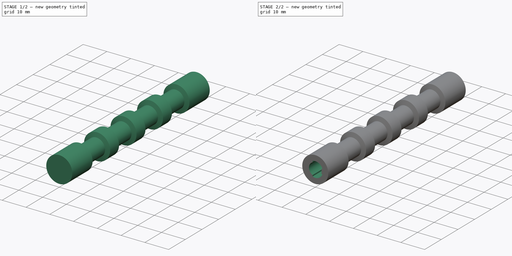
[diagram: build sequence overview — one tinted view per stage of 2, left to right]
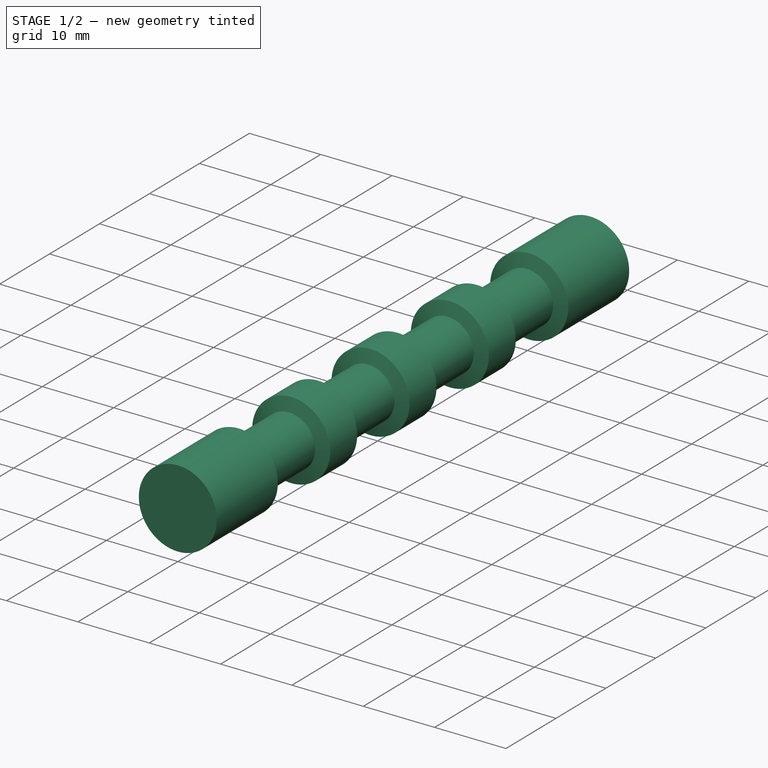
[diagram: stage 1 of 2 — iso view after this stage's code; geometry added in this stage tinted green]
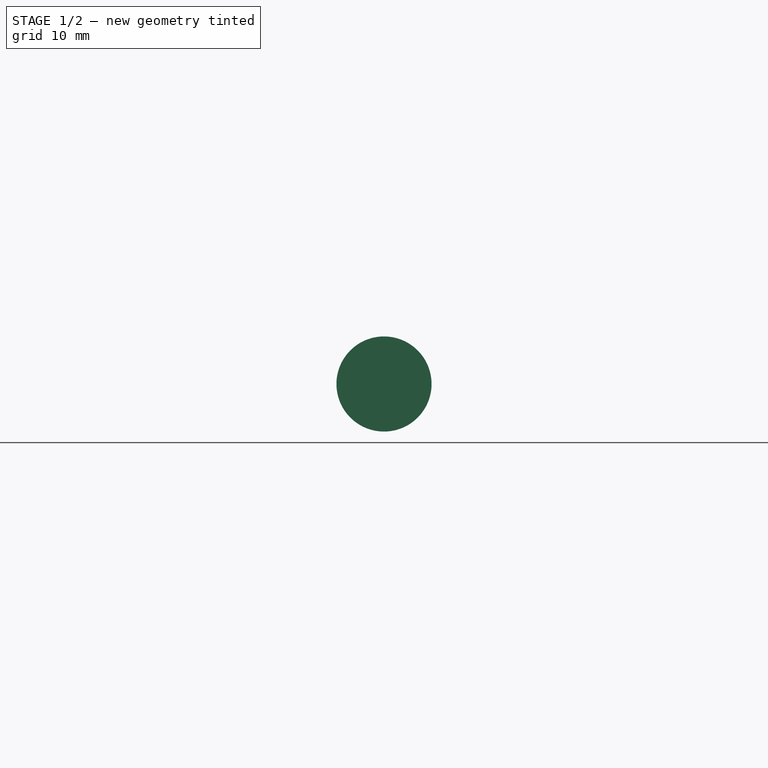
[diagram: stage 1 of 2 — front view after this stage's code; geometry added in this stage tinted green]
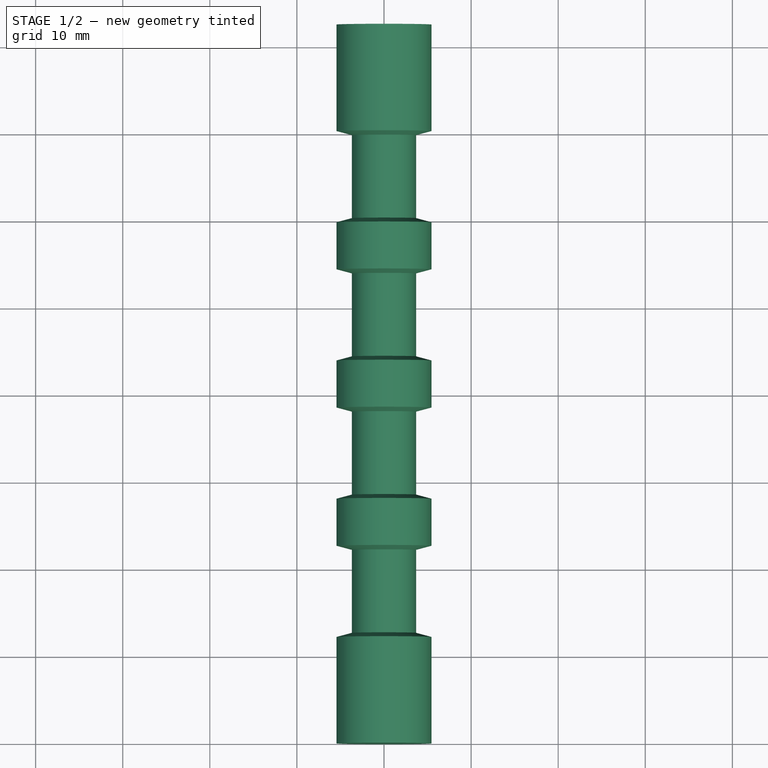
[diagram: stage 1 of 2 — top view after this stage's code; geometry added in this stage tinted green]
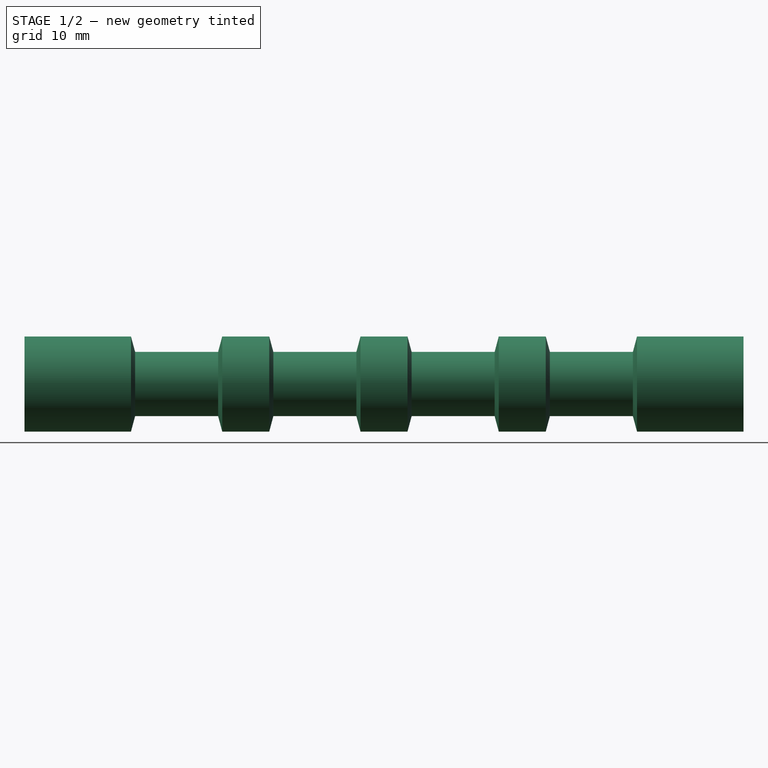
[diagram: stage 1 of 2 — right view after this stage's code; geometry added in this stage tinted green]
FCSTD DOCUMENT  (FreeCAD 1.0R39285 (Git))
Label: PinSleeve
License: All rights reserved
LicenseURL: https://en.wikipedia.org/wiki/All_rights_reserved
objects: Sketcher::SketchObject×2, Spreadsheet::Sheet×1, PartDesign::Revolution×1, PartDesign::Pocket×1, PartDesign::Body×1
note: 11 computed .brp shape members not serialized (recipe doc carries the construction recipe); baked Part::Feature solids carry a one-line shape summary decoded from their .brp

FEATURE [Sketcher::SketchObject] Sketch
  ArcFitTolerance = 1e-06
  AttachmentSupport = -> [YZ_Plane]
  FullyConstrained = true
  MakeInternals = false
  MapMode = 5
  Placement = pos=(0,0,0) rot=(0.57735,0.57735,0.57735;2.0944rad)
  expr: Constraints[40] = Spreadsheet.CoilDepth
  expr: Constraints[45] = Spreadsheet.EndSpacing
  expr: Constraints[53] = Spreadsheet.CoilLength
  expr: Constraints[54] = Spreadsheet.CoilAngle
  expr: Constraints[55] = Spreadsheet.CoilSpacing
  expr: Constraints[6] = Spreadsheet.OuterRadius
  sketch-geometry (37):
    g0: LineSegment StartX=0 StartY=0 StartZ=0 EndX=82.55 EndY=0 EndZ=0
    g1: LineSegment StartX=0 StartY=-5.461 StartZ=0 EndX=12.2236 EndY=-5.461 EndZ=0
    g2: LineSegment StartX=12.2236 StartY=-5.461 StartZ=0 EndX=12.7 EndY=-3.683 EndZ=0
    g3: LineSegment StartX=22.225 StartY=-3.683 StartZ=0 EndX=22.7014 EndY=-5.461 EndZ=0
    g4: LineSegment [constr] StartX=12.2236 StartY=-5.461 StartZ=0 EndX=22.7014 EndY=-5.461 EndZ=0
    g5: LineSegment StartX=22.7014 StartY=-5.461 StartZ=0 EndX=28.0986 EndY=-5.461 EndZ=0
    g6: LineSegment StartX=28.0986 StartY=-5.461 StartZ=0 EndX=28.575 EndY=-3.683 EndZ=0
    g7: LineSegment StartX=38.1 StartY=-3.683 StartZ=0 EndX=38.5764 EndY=-5.461 EndZ=0
    g8: LineSegment [constr] StartX=28.0986 StartY=-5.461 StartZ=0 EndX=38.5764 EndY=-5.461 EndZ=0
    g9: LineSegment StartX=38.5764 StartY=-5.461 StartZ=0 EndX=43.9736 EndY=-5.461 EndZ=0
    g10: LineSegment StartX=43.9736 StartY=-5.461 StartZ=0 EndX=44.45 EndY=-3.683 EndZ=0
    g11: LineSegment StartX=53.975 StartY=-3.683 StartZ=0 EndX=54.4514 EndY=-5.461 EndZ=0
    g12: LineSegment [constr] StartX=43.9736 StartY=-5.461 StartZ=0 EndX=54.4514 EndY=-5.461 EndZ=0
    g13: LineSegment StartX=54.4514 StartY=-5.461 StartZ=0 EndX=59.8486 EndY=-5.461 EndZ=0
    g14: LineSegment StartX=59.8486 StartY=-5.461 StartZ=0 EndX=60.325 EndY=-3.683 EndZ=0
    g15: LineSegment StartX=69.85 StartY=-3.683 StartZ=0 EndX=70.3264 EndY=-5.461 EndZ=0
    g16: LineSegment [constr] StartX=59.8486 StartY=-5.461 StartZ=0 EndX=70.3264 EndY=-5.461 EndZ=0
    g17: LineSegment StartX=70.3264 StartY=-5.461 StartZ=0 EndX=82.55 EndY=-5.461 EndZ=0
    g18: LineSegment StartX=82.55 StartY=0 StartZ=0 EndX=82.55 EndY=-5.461 EndZ=0
    g19: LineSegment StartX=0 StartY=0 StartZ=0 EndX=0 EndY=-5.461 EndZ=0
    g20: LineSegment StartX=12.7 StartY=-3.683 StartZ=0 EndX=22.225 EndY=-3.683 EndZ=0
    g21: LineSegment StartX=28.575 StartY=-3.683 StartZ=0 EndX=38.1 EndY=-3.683 EndZ=0
    g22: LineSegment StartX=44.45 StartY=-3.683 StartZ=0 EndX=53.975 EndY=-3.683 EndZ=0
    g23: LineSegment StartX=60.325 StartY=-3.683 StartZ=0 EndX=69.85 EndY=-3.683 EndZ=0
    g24: LineSegment [constr] StartX=12.7 StartY=-3.683 StartZ=0 EndX=22.7014 EndY=-5.461 EndZ=0
    g25: LineSegment [constr] StartX=22.225 StartY=-3.683 StartZ=0 EndX=12.2236 EndY=-5.461 EndZ=0
    g26: LineSegment [constr] StartX=28.0986 StartY=-5.461 StartZ=0 EndX=38.1 EndY=-3.683 EndZ=0
    g27: LineSegment [constr] StartX=28.575 StartY=-3.683 StartZ=0 EndX=38.5764 EndY=-5.461 EndZ=0
    g28: LineSegment [constr] StartX=53.975 StartY=-3.683 StartZ=0 EndX=43.9736 EndY=-5.461 EndZ=0
    g29: LineSegment [constr] StartX=44.45 StartY=-3.683 StartZ=0 EndX=54.4514 EndY=-5.461 EndZ=0
    g30: LineSegment [constr] StartX=69.85 StartY=-3.683 StartZ=0 EndX=59.8486 EndY=-5.461 EndZ=0
    g31: LineSegment [constr] StartX=60.325 StartY=-3.683 StartZ=0 EndX=70.3264 EndY=-5.461 EndZ=0
    g32: LineSegment [constr] StartX=22.225 StartY=-3.683 StartZ=0 EndX=28.575 EndY=-3.683 EndZ=0
    g33: LineSegment [constr] StartX=38.1 StartY=-3.683 StartZ=0 EndX=44.45 EndY=-3.683 EndZ=0
    g34: LineSegment [constr] StartX=53.975 StartY=-3.683 StartZ=0 EndX=60.325 EndY=-3.683 EndZ=0
    g35: LineSegment [constr] StartX=69.85 StartY=-3.683 StartZ=0 EndX=82.55 EndY=-3.683 EndZ=0
    g36: LineSegment [constr] StartX=12.7 StartY=-3.683 StartZ=0 EndX=0 EndY=-3.683 EndZ=0
  constraints (95):
    c: Coincident(g0,g-1)
    c: PointOnObject(g0,g-1)
    c: PointOnObject(g1,g-2)
    c: Horizontal(g1)
    c: Coincident(g4,g3)
    c: Horizontal(g4)
    c: DistanceY(g1,g0) = 5.461
    c: Horizontal(g5)
    c: Horizontal(g9)
    c: Horizontal(g13)
    c: Coincident(g6,g5)
    c: Coincident(g10,g9)
    c: Coincident(g14,g13)
    c: Coincident(g8,g5)
    c: Coincident(g12,g9)
    c: Coincident(g16,g13)
    c: Coincident(g8,g7)
    c: Coincident(g12,g11)
    c: Coincident(g16,g15)
    c: Horizontal(g8)
    c: Horizontal(g12)
    c: Horizontal(g16)
    c: Coincident(g3,g5)
    c: Coincident(g9,g7)
    c: Coincident(g11,g13)
    c: Coincident(g17,g15)
    c: Horizontal(g17)
    c: Coincident(g18,g0)
    c: Coincident(g18,g17)
    c: Vertical(g18)
    c: Coincident(g19,g0)
    c: Coincident(g19,g1)
    c: Coincident(g20,g2)
    c: Coincident(g20,g3)
    c: Coincident(g21,g6)
    c: Coincident(g21,g7)
    c: Coincident(g22,g10)
    c: Coincident(g22,g11)
    c: Coincident(g23,g14)
    c: Coincident(g23,g15)
    c: DistanceY(g2,g2) = 1.778
    c: Horizontal(g20)
    c: Horizontal(g21)
    c: Horizontal(g22)
    c: Horizontal(g23)
    c: DistanceX(g1,g2) = 12.7
    c: Coincident(g2,g1)
    c: Coincident(g4,g1)
    c: Coincident(g24,g2)
    c: Coincident(g24,g3)
    c: Coincident(g25,g3)
    c: Coincident(g25,g1)
    c: Equal(g24,g25)
    c: DistanceX(g20,g20) = 9.525
    c: Angle(g2,g19) = 0.261799
    c: DistanceX(g3,g6) = 6.35
    c: Coincident(g26,g5)
    c: Coincident(g26,g7)
    c: Coincident(g27,g6)
    c: Coincident(g27,g7)
    c: Coincident(g28,g11)
    c: Coincident(g28,g9)
    c: Coincident(g29,g10)
    c: Coincident(g29,g11)
    c: Coincident(g30,g15)
    c: Coincident(g30,g13)
    c: Coincident(g31,g14)
    c: Coincident(g31,g15)
    c: Equal(g27,g26)
    c: Equal(g28,g29)
    c: Equal(g30,g31)
    c: Coincident(g32,g3)
    c: Coincident(g32,g6)
    c: Horizontal(g32)
    c: Coincident(g33,g7)
    c: Coincident(g33,g10)
    c: Horizontal(g33)
    c: Coincident(g34,g11)
    c: Coincident(g34,g14)
    c: Horizontal(g34)
    c: Coincident(g35,g15)
    c: PointOnObject(g35,g18)
    c: Horizontal(g35)
    c: Coincident(g36,g2)
    c: PointOnObject(g36,g19)
    c: Horizontal(g36)
    c: Equal(g2,g6)
    c: Equal(g20,g21)
    c: Equal(g6,g10)
    c: Equal(g21,g22)
    c: Equal(g10,g14)
    c: Equal(g22,g23)
    c: Equal(g32,g33)
    c: Equal(g33,g34)
    c: Equal(g35,g36)
FEATURE [Spreadsheet::Sheet] Spreadsheet
  cells = A1='Outer Radius; B1(OuterRadius)==0.215 "; A2='Inner Radius; B2(InnerRadius)==0.105 "; A3='Minimum Wall Thickness; B3(MinimumWall)==20 thou; A4='Coil Depth; B4(CoilDepth)==0.07 "; A5='Coil Length; B5(CoilLength)==0.375 "; A6='Coil Spacing; B6(CoilSpacing)==0.25 "; A7='End Spacing; B7(EndSpacing)==0.5 "; A8='Coil Angle; B8(CoilAngle)==15 deg
FEATURE [PartDesign::Revolution] Revolution
  Angle = 360
  Angle2 = 60
  Axis = (0,1,0)
  Base = (0,0,0)
  Placement = pos=(0,0,0) rot=(1,1,1;2.0944rad)
  Profile = -> Sketch
  ReferenceAxis = -> Sketch [H_Axis]
  Refine = true
  Reversed = true
  Suppressed = false
  Type = 0
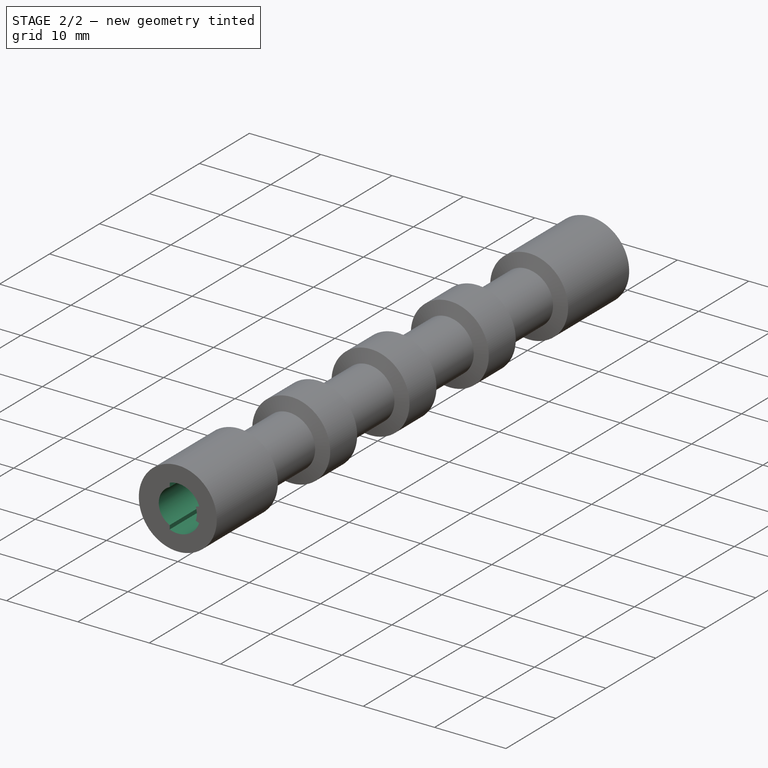
[diagram: stage 2 of 2 — iso view after this stage's code; geometry added in this stage tinted green]
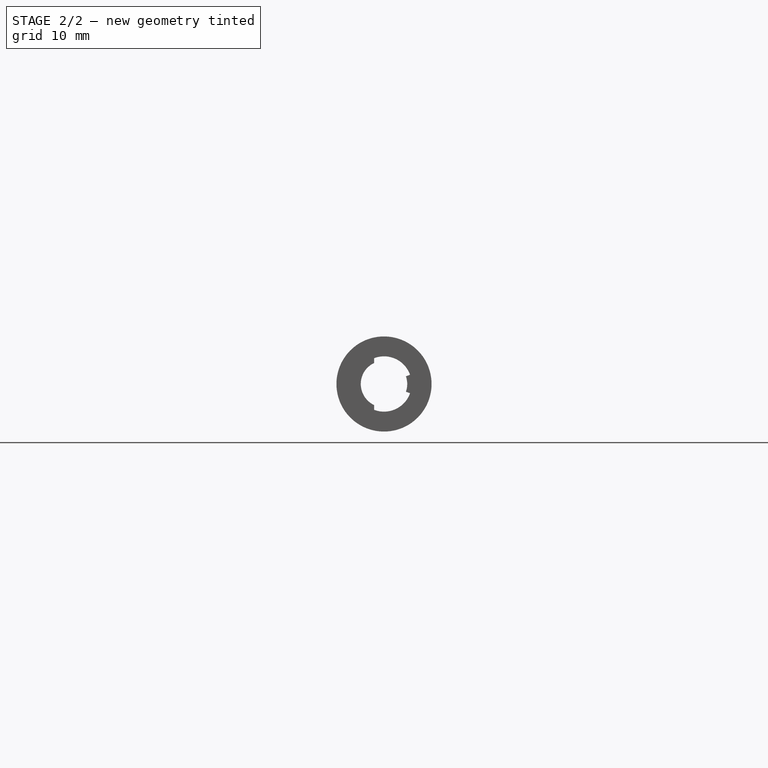
[diagram: stage 2 of 2 — front view after this stage's code; geometry added in this stage tinted green]
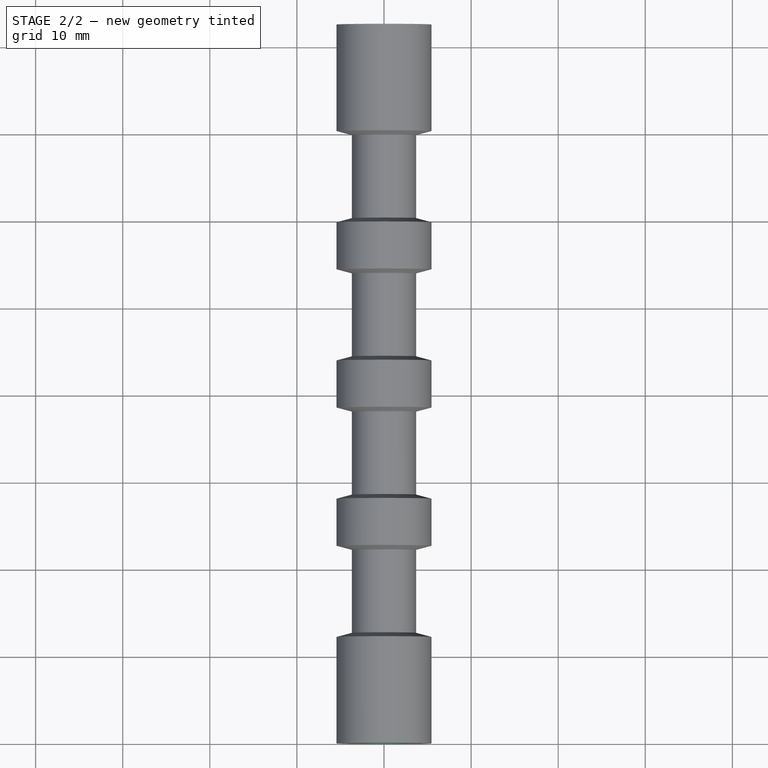
[diagram: stage 2 of 2 — top view after this stage's code; geometry added in this stage tinted green]
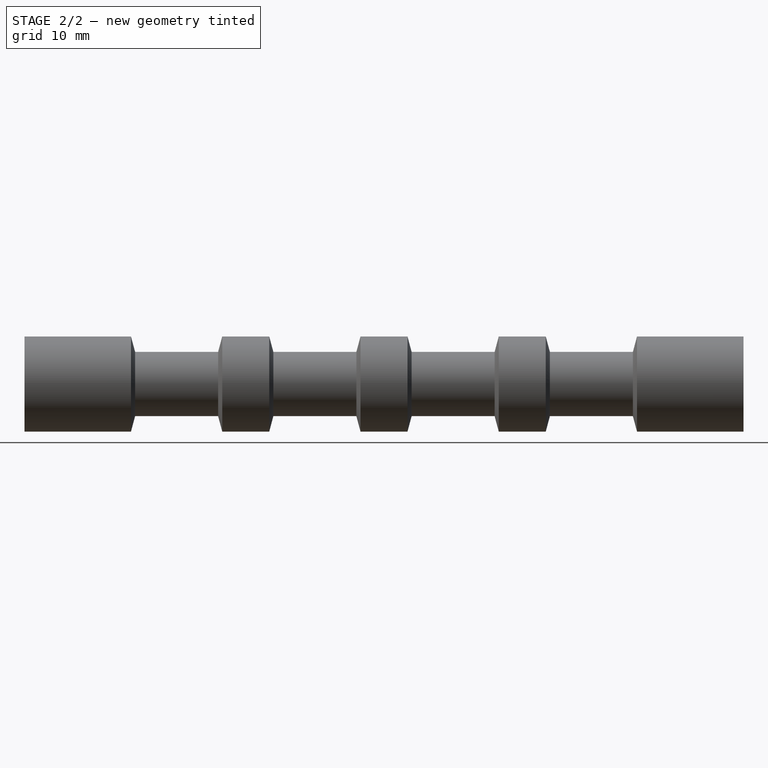
[diagram: stage 2 of 2 — right view after this stage's code; geometry added in this stage tinted green]
FEATURE [Sketcher::SketchObject] Sketch002
  ArcFitTolerance = 1e-06
  FullyConstrained = true
  MakeInternals = false
  MapMode = 5
  Placement = pos=(0,0,0) rot=(1,0,0;1.5708rad)
  expr: Constraints[1] = Spreadsheet.InnerRadius
  expr: Constraints[9] = Spreadsheet.OuterRadius - Spreadsheet.CoilDepth - Spreadsheet.InnerRadius - Spreadsheet.MinimumWall
  sketch-geometry (15):
    g0: ArcOfCircle CenterX=0 CenterY=0 CenterZ=0 NormalX=0 NormalY=0 NormalZ=1 AngleXU=0 Radius=2.667 StartAngle=2.01077 EndAngle=4.27241
    g1: Circle [constr] CenterX=0 CenterY=0 CenterZ=0 NormalX=0 NormalY=0 NormalZ=1 AngleXU=0 Radius=2.667
    g2: Circle [constr] CenterX=0 CenterY=0 CenterZ=0 NormalX=0 NormalY=0 NormalZ=1 AngleXU=0 Radius=3.175
    g3: LineSegment [constr] StartX=-3.175 StartY=0 StartZ=0 EndX=-2.667 EndY=0 EndZ=0
    g4: ArcOfCircle CenterX=0 CenterY=0 CenterZ=0 NormalX=0 NormalY=0 NormalZ=1 AngleXU=0 Radius=3.175 StartAngle=0.339837 EndAngle=1.93668
    g5: ArcOfCircle CenterX=0 CenterY=0 CenterZ=0 NormalX=0 NormalY=0 NormalZ=1 AngleXU=0 Radius=3.175 StartAngle=4.34651 EndAngle=5.94335
    g6: LineSegment StartX=-1.13592 StartY=-2.413 StartZ=0 EndX=-1.13592 EndY=-2.96484 EndZ=0
    g7: LineSegment StartX=2.51447 StartY=-0.889 StartZ=0 EndX=2.99342 EndY=-1.05833 EndZ=0
    g8: LineSegment StartX=-1.13592 StartY=2.96484 StartZ=0 EndX=-1.13592 EndY=2.413 EndZ=0
    g9: LineSegment StartX=2.99342 StartY=1.05833 StartZ=0 EndX=2.51447 EndY=0.889 EndZ=0
    g10: LineSegment [constr] StartX=-1.13592 StartY=2.413 StartZ=0 EndX=-1.13592 EndY=-2.413 EndZ=0
    g11: LineSegment [constr] StartX=2.51447 StartY=0.889 StartZ=0 EndX=2.51447 EndY=-0.889 EndZ=0
    g12: ArcOfCircle CenterX=0 CenterY=0 CenterZ=0 NormalX=0 NormalY=0 NormalZ=1 AngleXU=0 Radius=2.667 StartAngle=5.94335 EndAngle=6.62302
    g13: LineSegment [constr] StartX=0 StartY=0 StartZ=0 EndX=-1.13592 EndY=2.413 EndZ=0
    g14: GeomPoint [constr] X=0 Y=2.667 Z=0
  constraints (40):
    c: Coincident(g0,g-1)
    c: Radius(g0) = 2.667
    c: Coincident(g1,g0)
    c: PointOnObject(g0,g1)
    c: Coincident(g2,g0)
    c: PointOnObject(g3,g2)
    c: PointOnObject(g3,g0)
    c: PointOnObject(g3,g-1)
    c: PointOnObject(g3,g-1)
    c: Distance(g3,g3) = 0.508
    c: PointOnObject(g9,g1)
    c: Coincident(g4,g0)
    c: PointOnObject(g4,g2)
    c: Coincident(g5,g0)
    c: PointOnObject(g5,g2)
    c: Coincident(g6,g0)
    c: Coincident(g6,g5)
    c: Coincident(g7,g5)
    c: Coincident(g8,g4)
    c: Coincident(g8,g0)
    c: Coincident(g9,g4)
    c: Vertical(g6)
    c: Vertical(g8)
    c: Coincident(g10,g0)
    c: Coincident(g10,g0)
    c: Vertical(g10)
    c: Coincident(g11,g7)
    c: Vertical(g11)
    c: Coincident(g12,g0)
    c: Coincident(g12,g7)
    c: Coincident(g12,g11)
    c: Coincident(g9,g11)
    c: Perpendicular(g12,g7)
    c: Perpendicular(g12,g9)
    c: Coincident(g13,g0)
    c: Coincident(g13,g0)
    c: DistanceY(g11,g11) = 1.778
    c: PointOnObject(g14,g-2)
    c: PointOnObject(g14,g1)
    c: DistanceY(g0,g14) = 0.254
FEATURE [PartDesign::Pocket] Pocket
  BaseFeature = -> Revolution
  Direction = (0,1,-2e-16)
  Length = 5
  Length2 = 5
  Placement = pos=(0,0,0) rot=(1,1,1;2.0944rad)
  Profile = -> Sketch002
  ReferenceAxis = -> Sketch002 [N_Axis]
  Refine = true
  Suppressed = false
  Type = 1
FEATURE [PartDesign::Body] Body
  AllowCompound = false
  Group = -> [Sketch,Revolution,Sketch002,Pocket]
  Origin = -> Origin
  Tip = -> Pocket
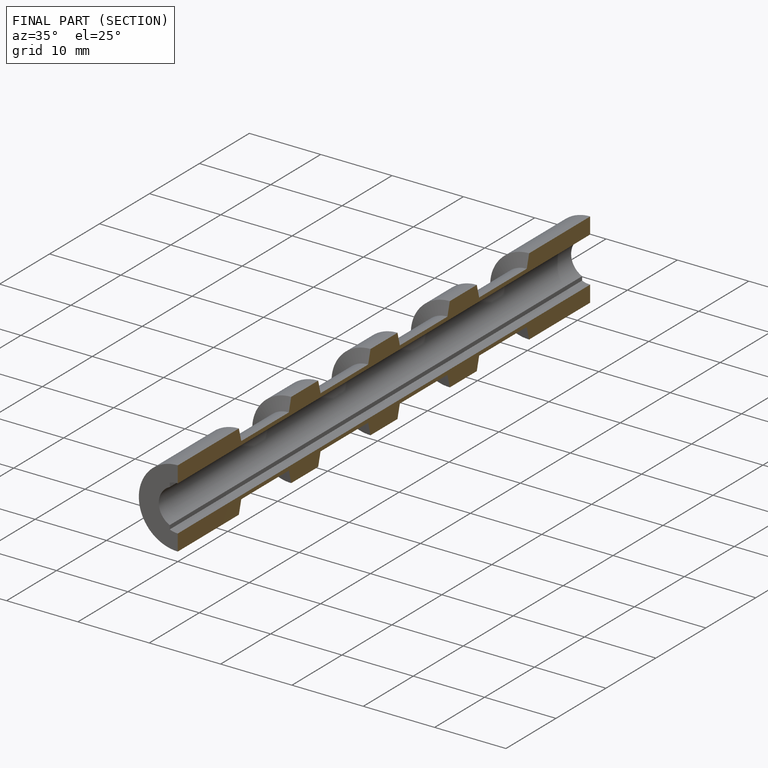
[diagram: finished part — half-section view (interior)]
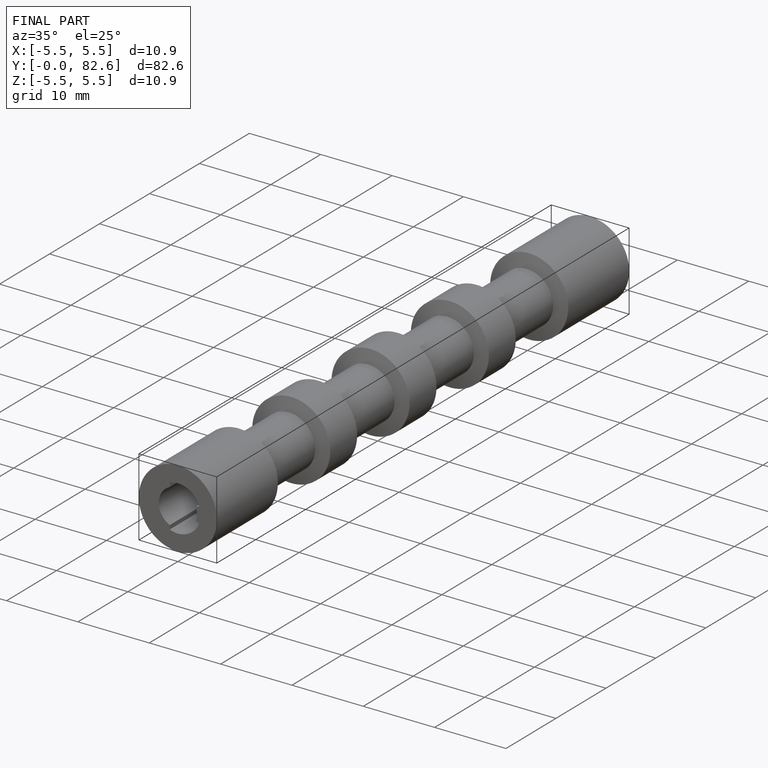
[diagram: finished part — iso view with bounding-box wireframe]
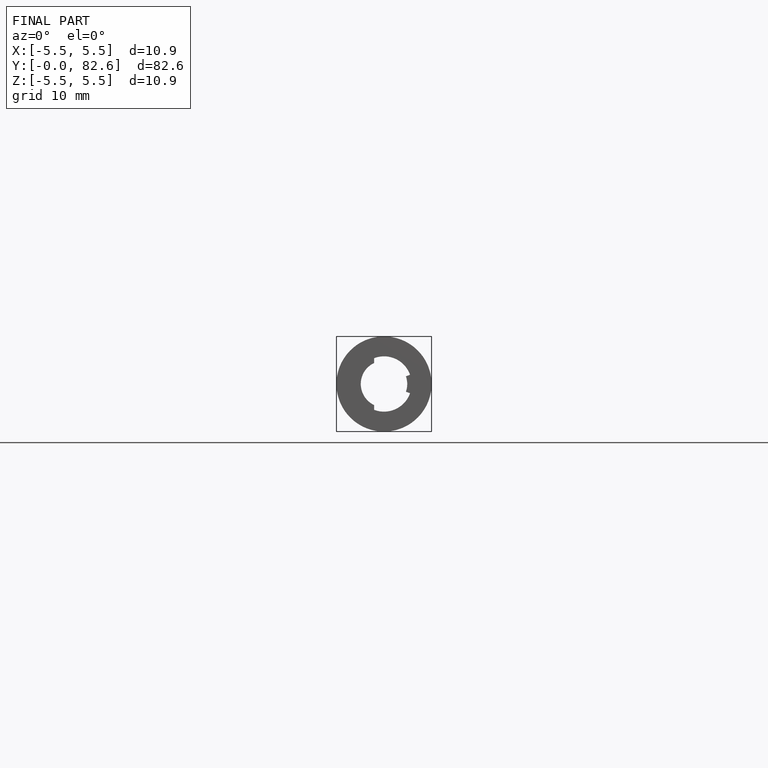
[diagram: finished part — front view with bounding-box wireframe]
